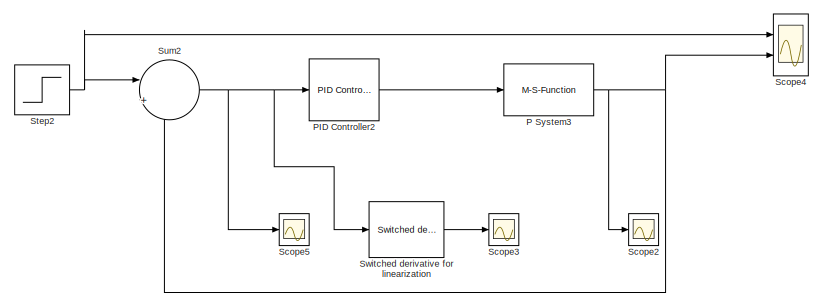
[diagram: root canvas - part 1/3, top right region]
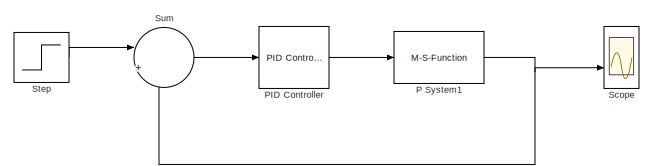
[diagram: root canvas - part 2/3, middle left region]
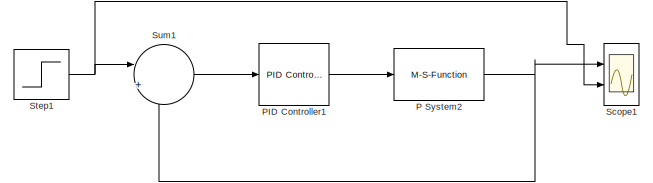
[diagram: root canvas - part 3/3, bottom center region]
MODEL slx_53e07e26715a
KIND model
CONFIG AbsTol = auto
CONFIG EnableMultiTasking = off
CONFIG FixedStep = auto
CONFIG MaxStep = auto
CONFIG MinStep = auto
CONFIG RelTol = 1e-3
CONFIG SampleTimeConstraint = Unconstrained
CONFIG SolverName = VariableStepAuto
CONFIG StartTime = 0.0
CONFIG StopTime = 600
BLOCK [M-S-Function] P System1
  FunctionName = whoknows
  Parameters = L, P1, P2, T, R
  Ports = [1, 1]
BLOCK [M-S-Function] P System2
  FunctionName = whoknows
  Parameters = L, P1, P2, T, R
  Ports = [1, 1]
BLOCK [M-S-Function] P System3
  FunctionName = whoknows
  Parameters = L, P1, P2, T, R
  Ports = [1, 1]
BLOCK [Reference] PID Controller  REF=pid_lib/PID Controller
  Ports = [1, 1]
  SourceBlock = pid_lib/PID Controller
  SourceProductBaseCode = SL
  SourceType = PID 1dof
BLOCK [Reference] PID Controller1  REF=pid_lib/PID Controller
  Ports = [1, 1]
  SourceBlock = pid_lib/PID Controller
  SourceProductBaseCode = SL
  SourceType = PID 1dof
BLOCK [Reference] PID Controller2  REF=pid_lib/PID Controller
  Ports = [1, 1]
  SourceBlock = pid_lib/PID Controller
  SourceProductBaseCode = SL
  SourceType = PID 1dof
BLOCK [Scope] Scope
  Floating = off
  NumInputPorts = 2
  Ports = [2]
  ScopeSpecificationString = Simulink.scopes.TimeScopeBlockCfg('CurrentConfiguration', extmgr.ConfigurationSet(extmgr.Configuration('Core','General UI',true),extmgr.Configuration('Core','Source UI',true),extmgr.Configuration('Sources','WiredSimulink',true),extmgr.Configuration('Visuals','Time Domain',true,'SerializedDisplays',{struct('MinYLimReal','-0.15292','MaxYLimReal','1.3763','YLabelReal','','MinYLimMag','0.00000','MaxYL...<+1746ch>
BLOCK [Scope] Scope1
  Floating = off
  NumInputPorts = 2
  Ports = [2]
  ScopeSpecificationString = Simulink.scopes.TimeScopeBlockCfg('CurrentConfiguration', extmgr.ConfigurationSet(extmgr.Configuration('Core','General UI',true),extmgr.Configuration('Core','Source UI',true),extmgr.Configuration('Sources','WiredSimulink',true,'DataLoggingVariableName','ScopeData1'),extmgr.Configuration('Visuals','Time Domain',true,'SerializedDisplays',{struct('MinYLimReal','-0.125','MaxYLimReal','1.125','YLabelRe...<+1809ch>
BLOCK [Scope] Scope2
  Floating = off
  NumInputPorts = 1
  Ports = [1]
  ScopeSpecificationString = Simulink.scopes.TimeScopeBlockCfg('CurrentConfiguration', extmgr.ConfigurationSet(extmgr.Configuration('Core','General UI',true),extmgr.Configuration('Core','Source UI',true),extmgr.Configuration('Sources','WiredSimulink',true,'DataLoggingVariableName','ScopeData1'),extmgr.Configuration('Visuals','Time Domain',true,'SerializedDisplays',{struct('MinYLimReal','-0.01773','MaxYLimReal','0.15953','YLab...<+1420ch>
BLOCK [Scope] Scope3
  Floating = off
  NumInputPorts = 1
  Ports = [1]
  ScopeSpecificationString = Simulink.scopes.TimeScopeBlockCfg('CurrentConfiguration', extmgr.ConfigurationSet(extmgr.Configuration('Core','General UI',true),extmgr.Configuration('Core','Source UI',true),extmgr.Configuration('Sources','WiredSimulink',true,'DataLoggingVariableName','ScopeData2'),extmgr.Configuration('Visuals','Time Domain',true,'SerializedDisplays',{struct('MinYLimReal','-17592186044416.0625','MaxYLimReal','15...<+1552ch>
BLOCK [Scope] Scope4
  Floating = off
  NumInputPorts = 2
  Ports = [2]
  ScopeSpecificationString = Simulink.scopes.TimeScopeBlockCfg('CurrentConfiguration', extmgr.ConfigurationSet(extmgr.Configuration('Core','General UI',true),extmgr.Configuration('Core','Source UI',true),extmgr.Configuration('Sources','WiredSimulink',true,'DataLoggingVariableName','ScopeData3'),extmgr.Configuration('Visuals','Time Domain',true,'SerializedDisplays',{struct('MinYLimReal','-0.125','MaxYLimReal','1.125','YLabelRe...<+1781ch>
BLOCK [Scope] Scope5
  Floating = off
  NumInputPorts = 1
  Ports = [1]
  ScopeSpecificationString = Simulink.scopes.TimeScopeBlockCfg('CurrentConfiguration', extmgr.ConfigurationSet(extmgr.Configuration('Core','General UI',true),extmgr.Configuration('Core','Source UI',true),extmgr.Configuration('Sources','WiredSimulink',true,'DataLoggingVariableName','ScopeData4'),extmgr.Configuration('Visuals','Time Domain',true,'SerializedDisplays',{struct('MinYLimReal','-0.125','MaxYLimReal','1.125','YLabelRe...<+1378ch>
BLOCK [Step] Step
  SampleTime = 0
BLOCK [Step] Step1
  SampleTime = 0
BLOCK [Step] Step2
  SampleTime = 0
BLOCK [Sum] Sum
  Inputs = |+-
  Ports = [2, 1]
BLOCK [Sum] Sum1
  Inputs = |+-
  Ports = [2, 1]
BLOCK [Sum] Sum2
  Inputs = |+-
  Ports = [2, 1]
BLOCK [Reference] Switched derivative for linearization  REF=simulink_extras/Linearization/Switched
derivative for
linearization
  Ports = [1, 1]
  SourceBlock = simulink_extras/Linearization/Switched\nderivative for\nlinearization
  SourceProductBaseCode = SL
  SourceType = Derivative for linearization
NET P System1:1 -> Scope:2, Sum:2
NET P System2:1 -> Scope1:1, Sum1:2
NET P System3:1 -> Scope2:1, Scope4:2, Sum2:2
LINE PID Controller1:1 -> P System2:1
LINE PID Controller2:1 -> P System3:1
LINE PID Controller:1 -> P System1:1
NET Step1:1 -> Scope1:2, Sum1:1
NET Step2:1 -> Scope4:1, Sum2:1
LINE Step:1 -> Sum:1
LINE Sum1:1 -> PID Controller1:1
NET Sum2:1 -> PID Controller2:1, Scope5:1, Switched derivative for linearization:1
LINE Sum:1 -> PID Controller:1
LINE Switched derivative for linearization:1 -> Scope3:1
note: NET lines group one-source signal fan-out (src -> all destinations, sorted); 1:1 wires keep LINE
